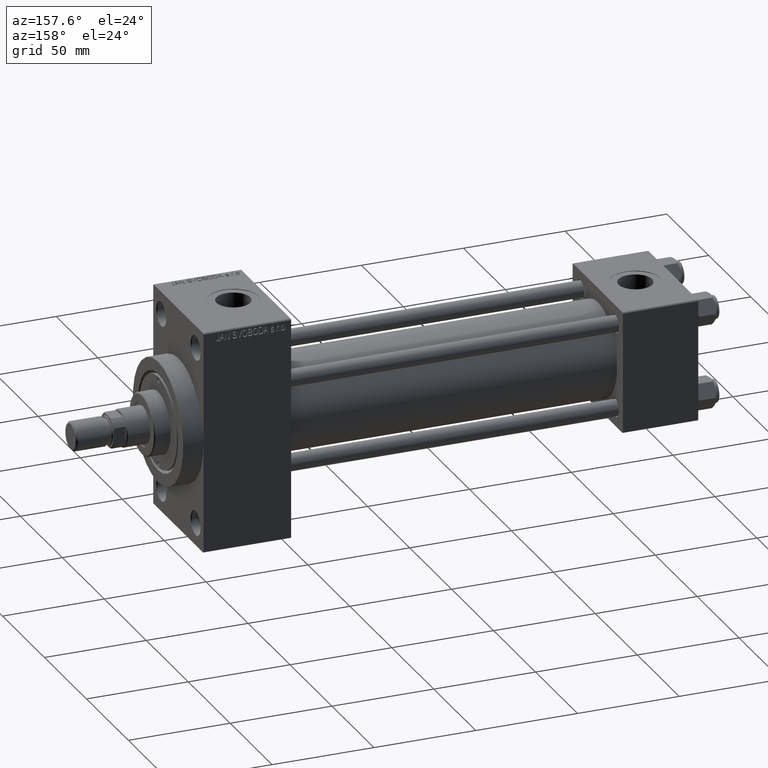
[diagram: clean part render]
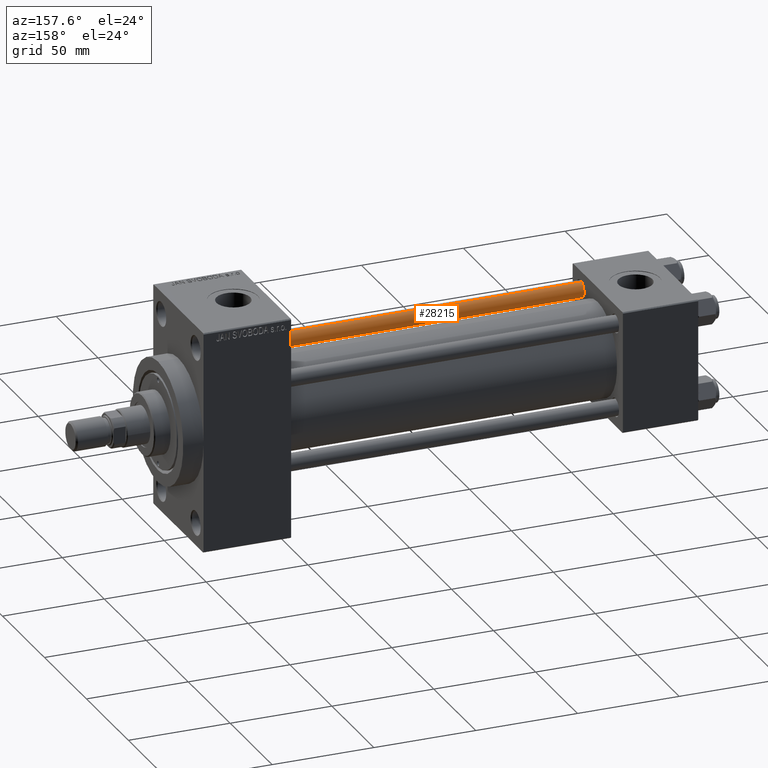
[diagram: same view with one face highlighted and labeled with its STEP entity id]
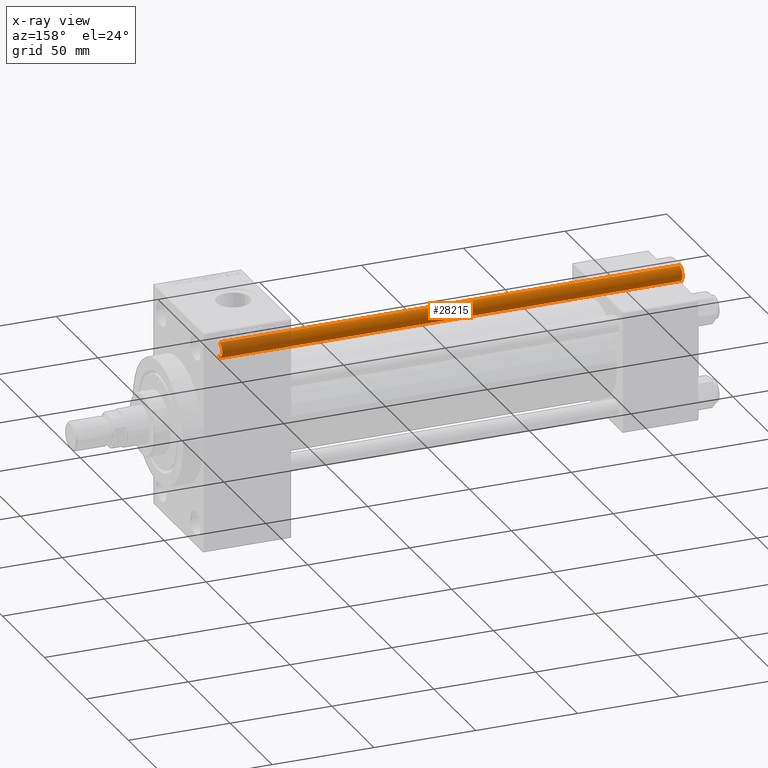
[diagram: x-ray of the same camera — body ghosted, the highlighted face saturated]
A machine part, auxiliary view. The second image highlights one B-rep face of the part: STEP entity #28215.
The next image is the same camera in x-ray: the body ghosted, the highlighted face saturated — about 15% of this face is hidden behind the body in this view.
In plain terms, the highlighted cylindrical surface (edge-blend (fillet) strip) has radius 4 mm, axis along (1, 0, 0).
Its self-contained STEP definition (entity closure, byte-faithful):
#1278 = DIRECTION ( 'NONE',  ( -0.000000000000000000, -0.000000000000000000, -1.000000000000000000 ) ) ;
#1556 = ORIENTED_EDGE ( 'NONE', *, *, #36839, .F. ) ;
#1808 = DIRECTION ( 'NONE',  ( -0.000000000000000000, -0.000000000000000000, 1.000000000000000000 ) ) ;
#3314 = CARTESIAN_POINT ( 'NONE',  ( 0.000000000000000000, 0.000000000000000000, 226.5000000000001421 ) ) ;
#7577 = EDGE_LOOP ( 'NONE', ( #1556, #40625, #37004, #37466 ) ) ;
#9869 = VECTOR ( 'NONE', #1278, 1000.000000000000000 ) ;
#11790 = EDGE_CURVE ( 'NONE', #32303, #20022, #17334, .T. ) ;
#13570 = VECTOR ( 'NONE', #39110, 1000.000000000000000 ) ;
#14075 = CARTESIAN_POINT ( 'NONE',  ( 4.000000000000000000, 4.898587196589411843E-16, 226.5000000000001421 ) ) ;
#15764 = AXIS2_PLACEMENT_3D ( 'NONE', #3314, #32860, #29240 ) ;
#16831 = DIRECTION ( 'NONE',  ( 1.000000000000000000, 0.000000000000000000, 0.000000000000000000 ) ) ;
#17334 = CIRCLE ( 'NONE', #15764, 4.000000000000000000 ) ;
#18109 = CARTESIAN_POINT ( 'NONE',  ( -4.000000000000000000, 0.000000000000000000, 226.5000000000001421 ) ) ;
#18276 = CIRCLE ( 'NONE', #45341, 4.000000000000000000 ) ;
#20022 = VERTEX_POINT ( 'NONE', #18109 ) ;
#20157 = CARTESIAN_POINT ( 'NONE',  ( 4.000000000000000000, 4.898587196589411843E-16, 227.0000000000000000 ) ) ;
#20809 = DIRECTION ( 'NONE',  ( -0.000000000000000000, -0.000000000000000000, -1.000000000000000000 ) ) ;
#21659 = CARTESIAN_POINT ( 'NONE',  ( -4.000000000000000000, 0.000000000000000000, 227.0000000000000000 ) ) ;
#21887 = VERTEX_POINT ( 'NONE', #40834 ) ;
#23739 = CYLINDRICAL_SURFACE ( 'NONE', #44375, 4.000000000000000000 ) ;
#28208 = LINE ( 'NONE', #21659, #13570 ) ;
#28215 = ADVANCED_FACE ( 'NONE', ( #46486 ), #23739, .T. ) ;
#28696 = CARTESIAN_POINT ( 'NONE',  ( 4.000000000000000000, 4.898587196589411843E-16, 0.5000000000002224887 ) ) ;
#29240 = DIRECTION ( 'NONE',  ( 1.000000000000000000, 0.000000000000000000, 0.000000000000000000 ) ) ;
#30588 = LINE ( 'NONE', #20157, #9869 ) ;
#30873 = CARTESIAN_POINT ( 'NONE',  ( 0.000000000000000000, 0.000000000000000000, 0.5000000000002224887 ) ) ;
#31568 = EDGE_CURVE ( 'NONE', #20022, #21887, #28208, .T. ) ;
#32303 = VERTEX_POINT ( 'NONE', #14075 ) ;
#32860 = DIRECTION ( 'NONE',  ( 0.000000000000000000, 0.000000000000000000, -1.000000000000000000 ) ) ;
#33909 = EDGE_CURVE ( 'NONE', #21887, #42379, #18276, .T. ) ;
#36839 = EDGE_CURVE ( 'NONE', #32303, #42379, #30588, .T. ) ;
#37004 = ORIENTED_EDGE ( 'NONE', *, *, #31568, .T. ) ;
#37466 = ORIENTED_EDGE ( 'NONE', *, *, #33909, .T. ) ;
#38509 = CARTESIAN_POINT ( 'NONE',  ( 0.000000000000000000, 0.000000000000000000, 227.0000000000000000 ) ) ;
#39110 = DIRECTION ( 'NONE',  ( -0.000000000000000000, -0.000000000000000000, -1.000000000000000000 ) ) ;
#39224 = DIRECTION ( 'NONE',  ( -1.000000000000000000, 0.000000000000000000, 0.000000000000000000 ) ) ;
#40625 = ORIENTED_EDGE ( 'NONE', *, *, #11790, .T. ) ;
#40834 = CARTESIAN_POINT ( 'NONE',  ( -4.000000000000000000, 0.000000000000000000, 0.5000000000002224887 ) ) ;
#42379 = VERTEX_POINT ( 'NONE', #28696 ) ;
#44375 = AXIS2_PLACEMENT_3D ( 'NONE', #38509, #20809, #39224 ) ;
#45341 = AXIS2_PLACEMENT_3D ( 'NONE', #30873, #1808, #16831 ) ;
#46486 = FACE_OUTER_BOUND ( 'NONE', #7577, .T. ) ;